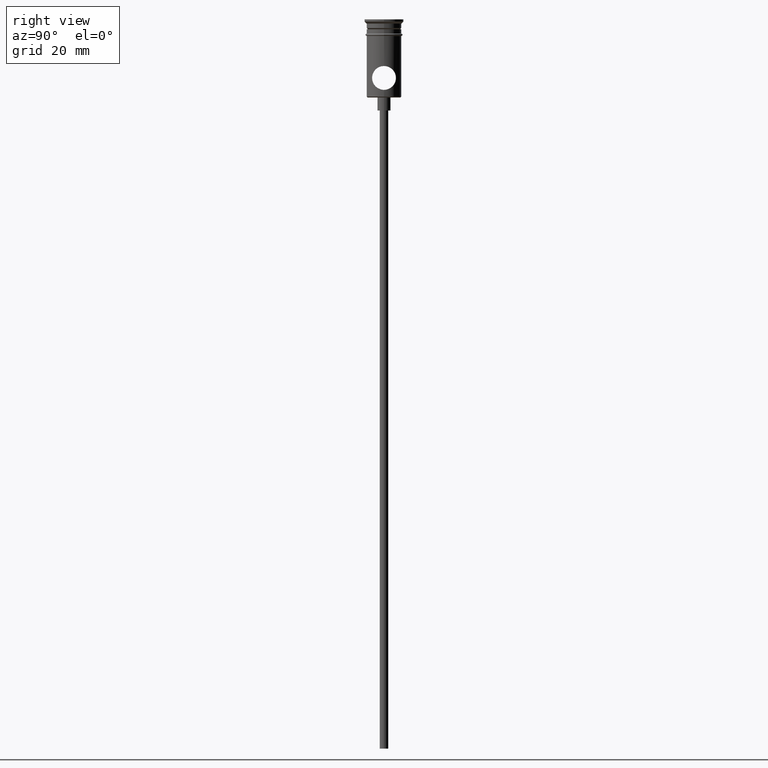
[diagram: clean part render]
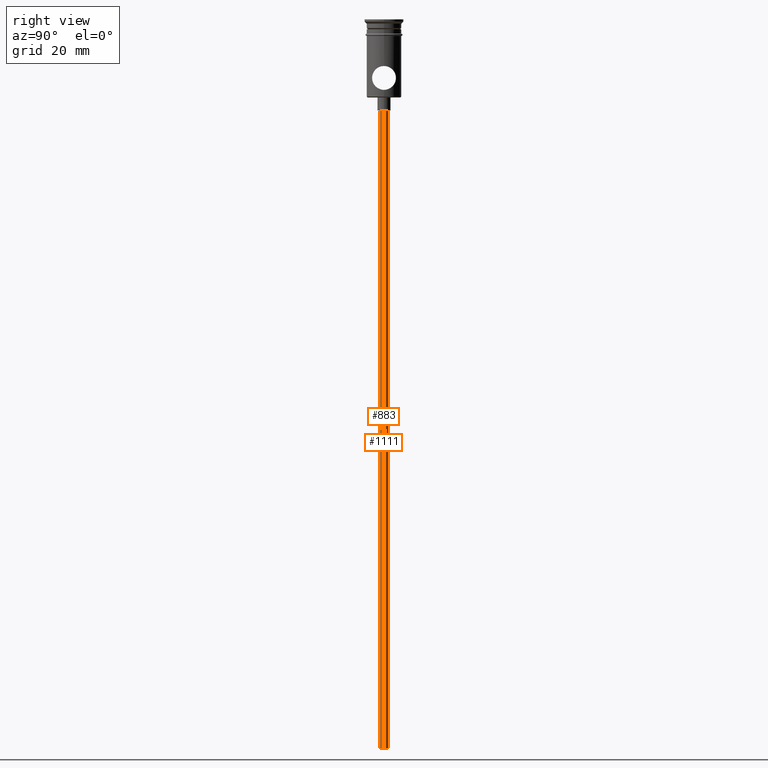
[diagram: same view with one multi-face feature highlighted, each face labeled with its STEP entity id]
A machine part, right view. The highlighted faces form ONE feature: a constant-radius fillet chain: 2 tangent blend faces with common blend radius 1 mm. The faces share edges in the B-rep.
Their STEP definitions:
[1] entity #883 (Cylinder):
#43 = CARTESIAN_POINT ( 'NONE',  ( 0.000000000000000000, 0.000000000000000000, -167.9999999999999716 ) ) ;
#78 = CIRCLE ( 'NONE', #701, 0.9999999999999997780 ) ;
#117 = EDGE_LOOP ( 'NONE', ( #1138, #865, #353, #1313 ) ) ;
#237 = CYLINDRICAL_SURFACE ( 'NONE', #277, 0.9999999999999997780 ) ;
#277 = AXIS2_PLACEMENT_3D ( 'NONE', #43, #785, #899 ) ;
#300 = AXIS2_PLACEMENT_3D ( 'NONE', #1392, #397, #481 ) ;
#322 = DIRECTION ( 'NONE',  ( 0.000000000000000000, 0.000000000000000000, -1.000000000000000000 ) ) ;
#353 = ORIENTED_EDGE ( 'NONE', *, *, #1344, .T. ) ;
#376 = DIRECTION ( 'NONE',  ( -0.000000000000000000, -0.000000000000000000, 1.000000000000000000 ) ) ;
#397 = DIRECTION ( 'NONE',  ( 0.000000000000000000, 0.000000000000000000, -1.000000000000000000 ) ) ;
#418 = VECTOR ( 'NONE', #431, 1000.000000000000000 ) ;
#431 = DIRECTION ( 'NONE',  ( -0.000000000000000000, -0.000000000000000000, 1.000000000000000000 ) ) ;
#481 = DIRECTION ( 'NONE',  ( -1.000000000000000000, 0.000000000000000000, 0.000000000000000000 ) ) ;
#510 = CIRCLE ( 'NONE', #300, 0.9999999999999997780 ) ;
#583 = CARTESIAN_POINT ( 'NONE',  ( -0.9999999999999997780, 1.224646799147352961E-16, -167.9999999999999716 ) ) ;
#645 = CARTESIAN_POINT ( 'NONE',  ( 0.000000000000000000, 0.000000000000000000, -167.9999999999999716 ) ) ;
#694 = VERTEX_POINT ( 'NONE', #1148 ) ;
#701 = AXIS2_PLACEMENT_3D ( 'NONE', #645, #322, #1005 ) ;
#716 = EDGE_CURVE ( 'NONE', #1162, #694, #510, .T. ) ;
#785 = DIRECTION ( 'NONE',  ( -0.000000000000000000, -0.000000000000000000, 1.000000000000000000 ) ) ;
#865 = ORIENTED_EDGE ( 'NONE', *, *, #1308, .F. ) ;
#883 = ADVANCED_FACE ( 'NONE', ( #1021 ), #237, .T. ) ;
#885 = CARTESIAN_POINT ( 'NONE',  ( 0.9999999999999997780, 0.000000000000000000, -167.9999999999999716 ) ) ;
#899 = DIRECTION ( 'NONE',  ( 1.000000000000000000, 0.000000000000000000, 0.000000000000000000 ) ) ;
#937 = VERTEX_POINT ( 'NONE', #583 ) ;
#995 = CARTESIAN_POINT ( 'NONE',  ( 0.9999999999999997780, 0.000000000000000000, -167.9999999999999716 ) ) ;
#1005 = DIRECTION ( 'NONE',  ( -1.000000000000000000, 0.000000000000000000, 0.000000000000000000 ) ) ;
#1021 = FACE_OUTER_BOUND ( 'NONE', #117, .T. ) ;
#1050 = VECTOR ( 'NONE', #376, 1000.000000000000000 ) ;
#1059 = EDGE_CURVE ( 'NONE', #937, #694, #1382, .T. ) ;
#1138 = ORIENTED_EDGE ( 'NONE', *, *, #1059, .F. ) ;
#1148 = CARTESIAN_POINT ( 'NONE',  ( -0.9999999999999997780, 1.224646799147352961E-16, -20.99999999999999645 ) ) ;
#1162 = VERTEX_POINT ( 'NONE', #1184 ) ;
#1184 = CARTESIAN_POINT ( 'NONE',  ( 0.9999999999999997780, 0.000000000000000000, -20.99999999999999645 ) ) ;
#1297 = VERTEX_POINT ( 'NONE', #995 ) ;
#1308 = EDGE_CURVE ( 'NONE', #1297, #937, #78, .T. ) ;
#1313 = ORIENTED_EDGE ( 'NONE', *, *, #716, .T. ) ;
#1344 = EDGE_CURVE ( 'NONE', #1297, #1162, #1417, .T. ) ;
#1367 = CARTESIAN_POINT ( 'NONE',  ( -0.9999999999999997780, 1.224646799147352961E-16, -167.9999999999999716 ) ) ;
#1382 = LINE ( 'NONE', #1367, #1050 ) ;
#1392 = CARTESIAN_POINT ( 'NONE',  ( 0.000000000000000000, 0.000000000000000000, -20.99999999999999645 ) ) ;
#1417 = LINE ( 'NONE', #885, #418 ) ;
[2] entity #1111 (Cylinder):
#12 = EDGE_LOOP ( 'NONE', ( #984, #184, #236, #920 ) ) ;
#38 = AXIS2_PLACEMENT_3D ( 'NONE', #990, #1284, #296 ) ;
#139 = AXIS2_PLACEMENT_3D ( 'NONE', #1321, #1328, #551 ) ;
#184 = ORIENTED_EDGE ( 'NONE', *, *, #1059, .T. ) ;
#236 = ORIENTED_EDGE ( 'NONE', *, *, #1327, .T. ) ;
#263 = DIRECTION ( 'NONE',  ( 0.000000000000000000, 0.000000000000000000, -1.000000000000000000 ) ) ;
#296 = DIRECTION ( 'NONE',  ( 1.000000000000000000, 0.000000000000000000, 0.000000000000000000 ) ) ;
#376 = DIRECTION ( 'NONE',  ( -0.000000000000000000, -0.000000000000000000, 1.000000000000000000 ) ) ;
#401 = CYLINDRICAL_SURFACE ( 'NONE', #38, 0.9999999999999997780 ) ;
#418 = VECTOR ( 'NONE', #431, 1000.000000000000000 ) ;
#431 = DIRECTION ( 'NONE',  ( -0.000000000000000000, -0.000000000000000000, 1.000000000000000000 ) ) ;
#551 = DIRECTION ( 'NONE',  ( -1.000000000000000000, 0.000000000000000000, 0.000000000000000000 ) ) ;
#583 = CARTESIAN_POINT ( 'NONE',  ( -0.9999999999999997780, 1.224646799147352961E-16, -167.9999999999999716 ) ) ;
#599 = CARTESIAN_POINT ( 'NONE',  ( 0.000000000000000000, 0.000000000000000000, -167.9999999999999716 ) ) ;
#650 = CIRCLE ( 'NONE', #1024, 0.9999999999999997780 ) ;
#679 = CIRCLE ( 'NONE', #139, 0.9999999999999997780 ) ;
#694 = VERTEX_POINT ( 'NONE', #1148 ) ;
#710 = EDGE_CURVE ( 'NONE', #937, #1297, #650, .T. ) ;
#859 = FACE_OUTER_BOUND ( 'NONE', #12, .T. ) ;
#885 = CARTESIAN_POINT ( 'NONE',  ( 0.9999999999999997780, 0.000000000000000000, -167.9999999999999716 ) ) ;
#920 = ORIENTED_EDGE ( 'NONE', *, *, #1344, .F. ) ;
#937 = VERTEX_POINT ( 'NONE', #583 ) ;
#953 = DIRECTION ( 'NONE',  ( -1.000000000000000000, 0.000000000000000000, 0.000000000000000000 ) ) ;
#984 = ORIENTED_EDGE ( 'NONE', *, *, #710, .F. ) ;
#990 = CARTESIAN_POINT ( 'NONE',  ( 0.000000000000000000, 0.000000000000000000, -167.9999999999999716 ) ) ;
#995 = CARTESIAN_POINT ( 'NONE',  ( 0.9999999999999997780, 0.000000000000000000, -167.9999999999999716 ) ) ;
#1024 = AXIS2_PLACEMENT_3D ( 'NONE', #599, #263, #953 ) ;
#1050 = VECTOR ( 'NONE', #376, 1000.000000000000000 ) ;
#1059 = EDGE_CURVE ( 'NONE', #937, #694, #1382, .T. ) ;
#1111 = ADVANCED_FACE ( 'NONE', ( #859 ), #401, .T. ) ;
#1148 = CARTESIAN_POINT ( 'NONE',  ( -0.9999999999999997780, 1.224646799147352961E-16, -20.99999999999999645 ) ) ;
#1162 = VERTEX_POINT ( 'NONE', #1184 ) ;
#1184 = CARTESIAN_POINT ( 'NONE',  ( 0.9999999999999997780, 0.000000000000000000, -20.99999999999999645 ) ) ;
#1284 = DIRECTION ( 'NONE',  ( -0.000000000000000000, -0.000000000000000000, 1.000000000000000000 ) ) ;
#1297 = VERTEX_POINT ( 'NONE', #995 ) ;
#1321 = CARTESIAN_POINT ( 'NONE',  ( 0.000000000000000000, 0.000000000000000000, -20.99999999999999645 ) ) ;
#1327 = EDGE_CURVE ( 'NONE', #694, #1162, #679, .T. ) ;
#1328 = DIRECTION ( 'NONE',  ( 0.000000000000000000, 0.000000000000000000, -1.000000000000000000 ) ) ;
#1344 = EDGE_CURVE ( 'NONE', #1297, #1162, #1417, .T. ) ;
#1367 = CARTESIAN_POINT ( 'NONE',  ( -0.9999999999999997780, 1.224646799147352961E-16, -167.9999999999999716 ) ) ;
#1382 = LINE ( 'NONE', #1367, #1050 ) ;
#1417 = LINE ( 'NONE', #885, #418 ) ;